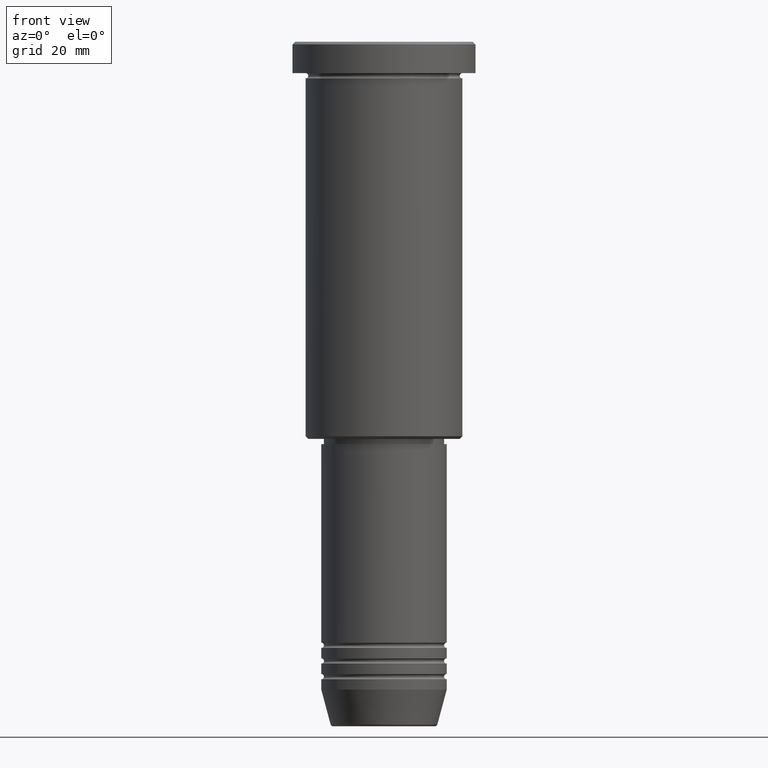
[diagram: clean part render]
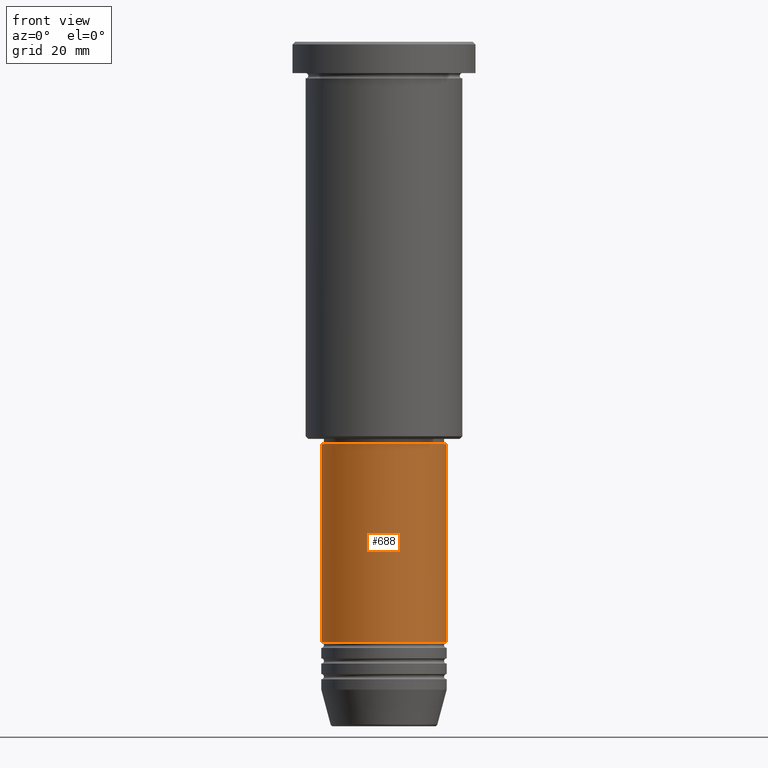
[diagram: same view with one face highlighted and labeled with its STEP entity id]
A machine part, front view. The second image highlights one B-rep face of the part: STEP entity #688.
In plain terms, the highlighted cylindrical surface (partial cylindrical patch) has radius 12 mm, axis along (-0, -0, 1).
Its self-contained STEP definition (entity closure, byte-faithful):
#16 = EDGE_CURVE ( 'NONE', #636, #460, #83, .T. ) ;
#32 = CARTESIAN_POINT ( 'NONE',  ( -12.00000000000000000, 1.469576158976823947E-15, 0.000000000000000000 ) ) ;
#83 = LINE ( 'NONE', #728, #260 ) ;
#260 = VECTOR ( 'NONE', #535, 1000.000000000000000 ) ;
#261 = CARTESIAN_POINT ( 'NONE',  ( 12.00000000000000000, 0.000000000000000000, -76.99999999999998579 ) ) ;
#281 = ORIENTED_EDGE ( 'NONE', *, *, #16, .T. ) ;
#292 = ORIENTED_EDGE ( 'NONE', *, *, #495, .F. ) ;
#313 = VERTEX_POINT ( 'NONE', #1042 ) ;
#406 = DIRECTION ( 'NONE',  ( -0.000000000000000000, -0.000000000000000000, 1.000000000000000000 ) ) ;
#460 = VERTEX_POINT ( 'NONE', #261 ) ;
#495 = EDGE_CURVE ( 'NONE', #1020, #460, #922, .T. ) ;
#515 = DIRECTION ( 'NONE',  ( -0.000000000000000000, -0.000000000000000000, 1.000000000000000000 ) ) ;
#523 = AXIS2_PLACEMENT_3D ( 'NONE', #597, #515, #592 ) ;
#535 = DIRECTION ( 'NONE',  ( -0.000000000000000000, -0.000000000000000000, 1.000000000000000000 ) ) ;
#592 = DIRECTION ( 'NONE',  ( 1.000000000000000000, 0.000000000000000000, 0.000000000000000000 ) ) ;
#597 = CARTESIAN_POINT ( 'NONE',  ( 0.000000000000000000, 0.000000000000000000, 0.000000000000000000 ) ) ;
#605 = AXIS2_PLACEMENT_3D ( 'NONE', #1044, #684, #1131 ) ;
#621 = VECTOR ( 'NONE', #406, 1000.000000000000000 ) ;
#636 = VERTEX_POINT ( 'NONE', #927 ) ;
#637 = EDGE_CURVE ( 'NONE', #313, #1020, #839, .T. ) ;
#648 = CARTESIAN_POINT ( 'NONE',  ( -12.00000000000000000, 1.469576158976823947E-15, -76.99999999999998579 ) ) ;
#655 = ORIENTED_EDGE ( 'NONE', *, *, #1183, .T. ) ;
#684 = DIRECTION ( 'NONE',  ( -0.000000000000000000, -0.000000000000000000, 1.000000000000000000 ) ) ;
#688 = ADVANCED_FACE ( 'NONE', ( #1103 ), #1041, .T. ) ;
#711 = AXIS2_PLACEMENT_3D ( 'NONE', #738, #1086, #1004 ) ;
#728 = CARTESIAN_POINT ( 'NONE',  ( 12.00000000000000000, 0.000000000000000000, 0.000000000000000000 ) ) ;
#738 = CARTESIAN_POINT ( 'NONE',  ( 0.000000000000000000, 0.000000000000000000, -76.99999999999998579 ) ) ;
#839 = LINE ( 'NONE', #32, #621 ) ;
#882 = ORIENTED_EDGE ( 'NONE', *, *, #637, .F. ) ;
#903 = EDGE_LOOP ( 'NONE', ( #882, #655, #281, #292 ) ) ;
#906 = CIRCLE ( 'NONE', #605, 12.00000000000000000 ) ;
#922 = CIRCLE ( 'NONE', #711, 12.00000000000000000 ) ;
#927 = CARTESIAN_POINT ( 'NONE',  ( 12.00000000000000000, 0.000000000000000000, -114.9999999999999574 ) ) ;
#1004 = DIRECTION ( 'NONE',  ( 1.000000000000000000, 0.000000000000000000, 0.000000000000000000 ) ) ;
#1020 = VERTEX_POINT ( 'NONE', #648 ) ;
#1041 = CYLINDRICAL_SURFACE ( 'NONE', #523, 12.00000000000000000 ) ;
#1042 = CARTESIAN_POINT ( 'NONE',  ( -12.00000000000000000, 1.469576158976823947E-15, -114.9999999999999574 ) ) ;
#1044 = CARTESIAN_POINT ( 'NONE',  ( 0.000000000000000000, 0.000000000000000000, -114.9999999999999574 ) ) ;
#1086 = DIRECTION ( 'NONE',  ( -0.000000000000000000, -0.000000000000000000, 1.000000000000000000 ) ) ;
#1103 = FACE_OUTER_BOUND ( 'NONE', #903, .T. ) ;
#1131 = DIRECTION ( 'NONE',  ( 1.000000000000000000, 0.000000000000000000, 0.000000000000000000 ) ) ;
#1183 = EDGE_CURVE ( 'NONE', #313, #636, #906, .T. ) ;